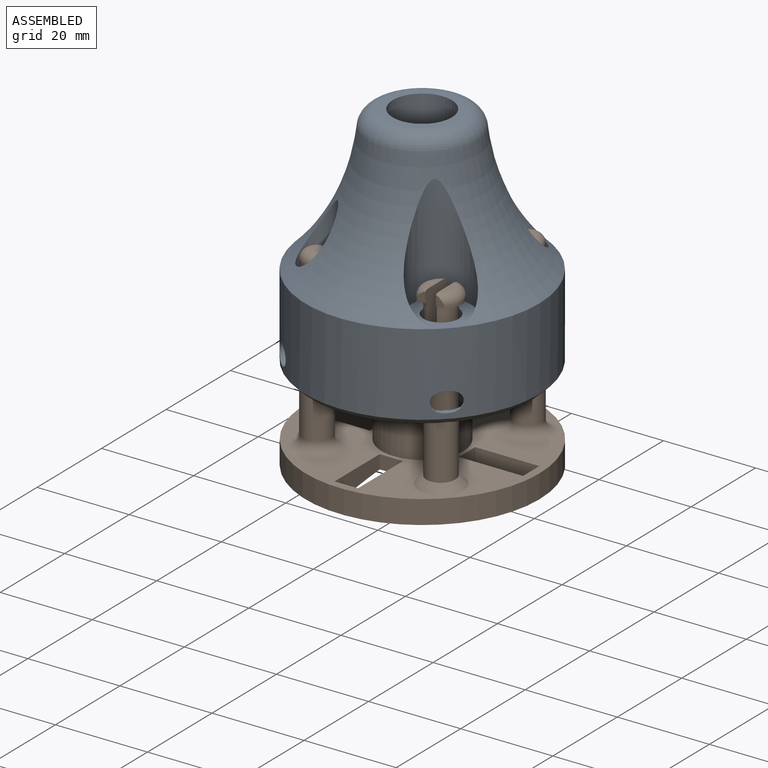
[diagram: assembled view]
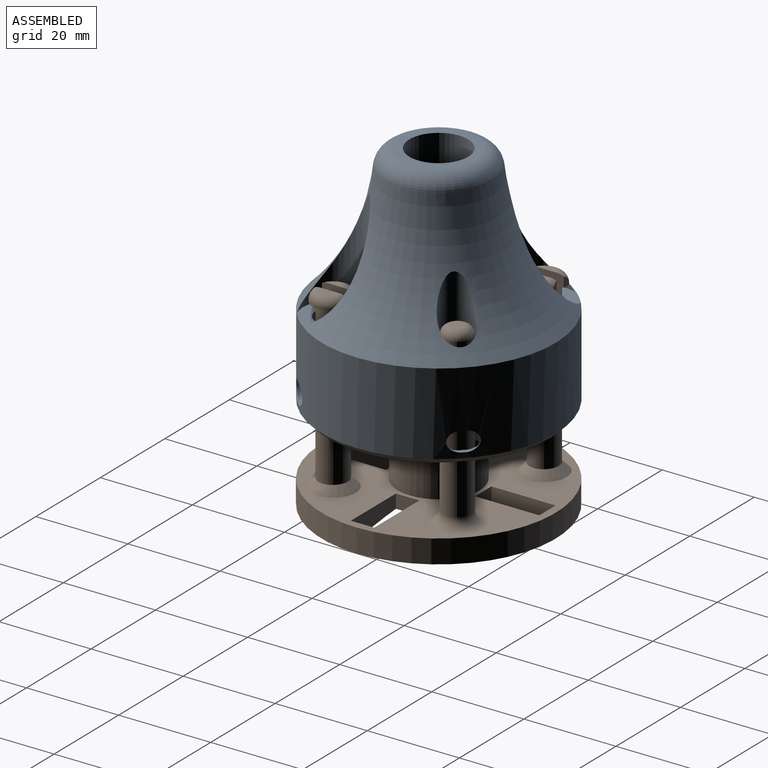
[diagram: assembled view, second angle]
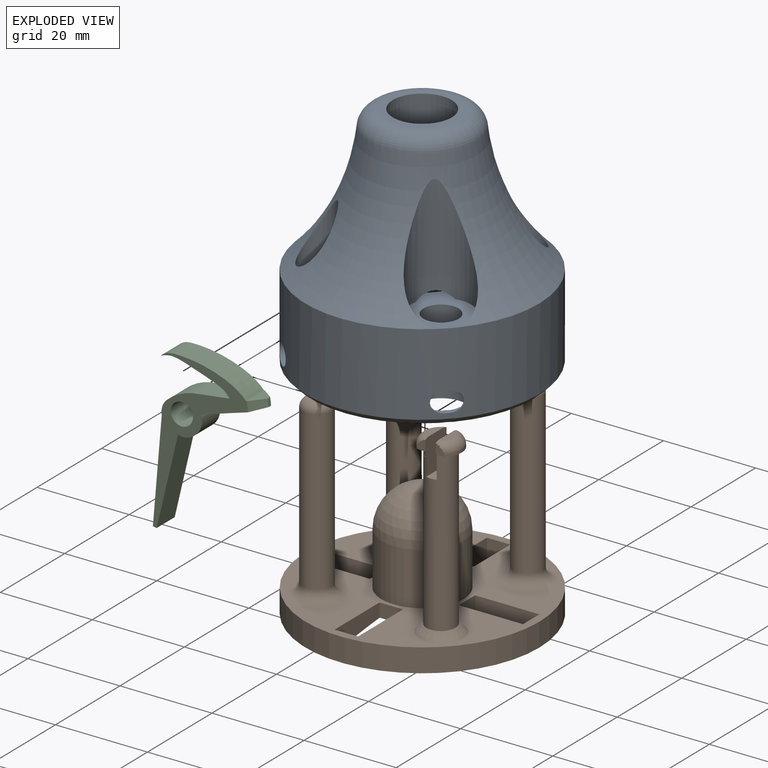
[diagram: exploded view]
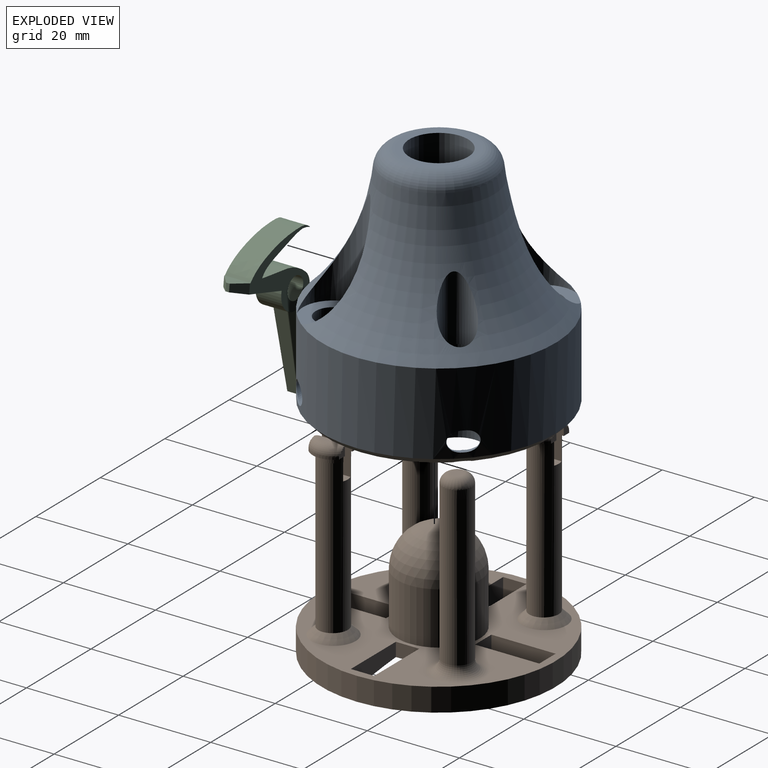
[diagram: exploded view, second angle]
ASSEMBLY  parts=3 mates=2
PART A: 90 faces, bbox 123.1x123.1x51.8 mm
  f0: cylinder r=2.16mm len=13.72mm, axis (0,-1,0), area 128.7mm2, adj f9,f51,f52,f53,f62,f63,f80,f86
  f1: cylinder r=2.16mm len=1.54mm, axis (0,-1,0), area 0.5mm2, adj f2,f26,f49
  f2: cylinder r=2.16mm len=13.72mm, axis (0,-1,0), area 115.4mm2, adj f1,f26,f48,f50,f84
  f3: revolved ~27.93x27.93mm, area 717.3mm2, adj f5,f6,f7,f8,f64,f65,f66,f67
  f4: torus R=56.88mm, axis (0,0,-1), area 2695.5mm2, adj f19,f73,f74,f75,f76,f77
  f5: plane 3.62x0.12mm, normal (0,0,1), area 0.3mm2, adj f3,f43
  f6: plane 33.68x16.9mm, normal (0,0,1), area 183mm2, adj f3,f18,f19,f22,f27,f32,f33,f35
  f7: plane 3.62x0.12mm, normal (0,0,1), area 0.3mm2, adj f3,f39
  f8: plane 33.68x16.82mm, normal (0,0,1), area 182.8mm2, adj f3,f16,f17,f19,f21,f28,f29,f31
  f9: cylinder r=3.81mm len=16mm, axis (0,0,1), area 338.6mm2, adj f0,f10,f51,f63,f68,f78
  f10: cylinder r=3.81mm len=0.16mm, axis (0,0,1), area 0mm2, adj f9,f51,f63
  f11: cylinder r=3.81mm len=16mm, axis (0,0,1), area 339.1mm2, adj f13,f55,f61,f69
  f12: cylinder r=2.16mm len=4.32mm, axis (0,-1,0), area 1.5mm2, adj f19,f57,f58
  f13: cylinder r=2.16mm len=14.61mm, axis (0,-1,0), area 140.9mm2, adj f11,f14,f32,f54,f55,f60,f61,f79
  f14: cylinder r=2.16mm len=1.14mm, axis (0,-1,0), area 0.3mm2, adj f13,f56,f60
  f15: cylinder r=2.16mm len=4.32mm, axis (0,-1,0), area 1.5mm2, adj f19,f51,f53
  f16: cylinder r=10.03mm len=19.05mm, axis (0,0,1), area 177.1mm2, adj f8,f20,f28,f40
  f17: cylinder r=10.03mm len=19.05mm, axis (0,0,1), area 177.1mm2, adj f8,f20,f29,f36
  f18: cylinder r=10.03mm len=19.05mm, axis (0,0,1), area 177.1mm2, adj f6,f20,f32,f41
  f19: cylinder r=25.4mm len=50.8mm, axis (0,0,-1), area 2750.6mm2, adj f4,f6,f8,f12,f15,f46,f47,f50
  f20: plane 48.26x48.26mm, normal (0,0,-1), area 841.1mm2, adj f16,f17,f18,f24,f26,f27,f28,f29
  f21: cylinder r=3.81mm len=7.62mm, axis (0,0,1), area 152mm2, adj f8,f25
  f22: cylinder r=3.81mm len=7.62mm, axis (0,0,1), area 152mm2, adj f6,f23
  f23: plane 10.41x10.41mm, normal (0,0,-1), area 39.6mm2, adj f22,f24
  f24: cylinder r=5.21mm len=12.7mm, axis (0,0,-1), area 335.9mm2, adj f20,f23,f44,f45,f58,f59,f81
  f25: plane 10.16x10.16mm, normal (0,0,-1), area 35.5mm2, adj f21,f26
  f26: cylinder r=5.08mm len=12.7mm, axis (0,0,-1), area 327.2mm2, adj f1,f2,f20,f25,f48,f49,f81
  f27: cylinder r=10.03mm len=19.05mm, axis (0,0,1), area 177.1mm2, adj f6,f20,f33,f37
  f28: plane 19.05x13.34mm, normal (0,-1,0), area 197.6mm2, adj f8,f16,f20,f30,f31,f83
  f29: plane 19.05x13.34mm, normal (0,1,0), area 199.3mm2, adj f8,f17,f20,f30,f31,f87
  f30: plane 6.35x5.08mm, normal (1,0,0), area 32.3mm2, adj f20,f28,f29,f31
  f31: cylinder r=17.15mm len=13.97mm, axis (0,-1,0), area 111.4mm2, adj f8,f28,f29,f30
  f32: plane 19.05x13.34mm, normal (0,-1,0), area 199.1mm2, adj f6,f13,f18,f20,f34,f35
  f33: plane 19.05x13.34mm, normal (0,1,0), area 199.1mm2, adj f6,f20,f27,f34,f35,f44
  f34: plane 6.35x5.08mm, normal (-1,0,0), area 32.3mm2, adj f20,f32,f33,f35
  f35: cylinder r=17.32mm len=13.97mm, axis (0,-1,0), area 111.3mm2, adj f6,f32,f33,f34
  f36: plane 19.05x13.34mm, normal (1,0,0), area 204.2mm2, adj f8,f17,f20,f38,f39,f51,f67
  f37: plane 19.05x13.34mm, normal (-1,0,0), area 204.2mm2, adj f6,f20,f27,f38,f39,f58,f64
  f38: plane 6.35x5.08mm, normal (0,1,0), area 32.3mm2, adj f20,f36,f37,f39
  f39: cylinder r=15.34mm len=13.97mm, axis (1,0,0), area 111.6mm2, adj f7,f36,f37,f38,f64,f67
  f40: plane 19.05x13.34mm, normal (1,0,0), area 204.2mm2, adj f8,f16,f20,f42,f43,f48,f66
  f41: plane 19.05x13.34mm, normal (-1,0,0), area 204.2mm2, adj f6,f18,f20,f42,f43,f55,f65
  f42: plane 6.35x5.08mm, normal (0,-1,0), area 32.3mm2, adj f20,f40,f41,f43
  f43: cylinder r=15.34mm len=13.97mm, axis (1,0,0), area 111.6mm2, adj f5,f40,f41,f42,f65,f66
  f44: cylinder r=2.16mm len=14.61mm, axis (0,-1,0), area 122.8mm2, adj f24,f33,f45,f57,f58
  f45: cylinder r=2.16mm len=1.37mm, axis (0,-1,0), area 0.4mm2, adj f24,f44,f59
  f46: cylinder r=2.16mm len=4.32mm, axis (0,-1,0), area 1.5mm2, adj f19,f54,f55
  f47: cylinder r=2.16mm len=4.32mm, axis (0,-1,0), area 1.5mm2, adj f19,f48,f50
  f48: cylinder r=2.16mm len=14.61mm, axis (1,0,0), area 125.5mm2, adj f2,f26,f40,f47,f49
  f49: cylinder r=2.16mm len=1.49mm, axis (1,0,0), area 0.5mm2, adj f1,f26,f48
  f50: cylinder r=2.16mm len=4.32mm, axis (1,0,0), area 1.5mm2, adj f2,f19,f47
  f51: cylinder r=2.16mm len=14.61mm, axis (1,0,0), area 140.1mm2, adj f0,f9,f10,f15,f36,f52,f62,f63
  f52: cylinder r=2.16mm len=1.19mm, axis (1,0,0), area 0.3mm2, adj f0,f51,f62
  f53: cylinder r=2.16mm len=4.32mm, axis (1,0,0), area 1.5mm2, adj f0,f15,f19
  f54: cylinder r=2.16mm len=4.32mm, axis (1,0,0), area 1.5mm2, adj f13,f19,f46
  f55: cylinder r=2.16mm len=14.61mm, axis (1,0,0), area 140.1mm2, adj f11,f13,f41,f46,f56,f60,f61,f79
  f56: cylinder r=2.16mm len=1.14mm, axis (1,0,0), area 0.3mm2, adj f14,f55,f60
  f57: cylinder r=2.16mm len=4.32mm, axis (1,0,0), area 1.5mm2, adj f12,f19,f44
  f58: cylinder r=2.16mm len=14.61mm, axis (1,0,0), area 125.5mm2, adj f12,f24,f37,f44,f59
  f59: cylinder r=2.16mm len=1.43mm, axis (1,0,0), area 0.5mm2, adj f24,f45,f58
  f60: cylinder r=5.32mm len=10.65mm, axis (0,0,-1), area 82.9mm2, adj f13,f14,f20,f55,f56,f79,f81
  f61: plane 7.58x7.58mm, normal (0,0,-1), area 12.8mm2, adj f11,f13,f55,f79
  f62: cylinder r=5.29mm len=10.59mm, axis (0,0,-1), area 83.1mm2, adj f0,f20,f51,f52,f80,f81
  f63: plane 7.55x7.55mm, normal (0,0,-1), area 12.4mm2, adj f0,f9,f10,f51,f80
  f64: plane 1.36x0.25mm, normal (0,0,-1), area 0.2mm2, adj f3,f37,f39
  f65: plane 1.36x0.25mm, normal (0,0,-1), area 0.2mm2, adj f3,f41,f43
  f66: plane 1.36x0.25mm, normal (0,0,-1), area 0.2mm2, adj f3,f40,f43
  f67: plane 1.36x0.25mm, normal (0,0,-1), area 0.2mm2, adj f3,f36,f39
  f68: plane 6.58x6.45mm, normal (0,0,-1), area 0.2mm2, adj f9,f77
  f69: plane 7.62x7.62mm, normal (0,0,-1), area 3mm2, adj f11,f76
  f70: plane 12.79x12.79mm, normal (0,0,1), area 128.6mm2, adj f71
  f71: cylinder r=6.4mm len=22.5mm, axis (0,0,-1), area 904.4mm2, adj f70,f72
  f72: plane 15.83x15.83mm, normal (0,0,1), area 68.2mm2, adj f71,f73
  f73: torus R=7.91mm, axis (0,0,1), area 359.7mm2, adj f4,f72
  f74: cylinder r=6.6mm len=23.15mm, axis (0,0,-1), area 437mm2, adj f3,f4,f8
  f75: cylinder r=6.6mm len=23.37mm, axis (0,0,-1), area 350.7mm2, adj f3,f4,f6
  f76: cylinder r=3.68mm len=14.31mm, axis (0,0,-1), area 180.3mm2, adj f4,f69
  f77: cylinder r=3.81mm len=14.61mm, axis (0,0,-1), area 191.1mm2, adj f4,f68,f78
  f78: plane 6.58x6.45mm, normal (0,0,1), area 0.2mm2, adj f9,f77
  f79: torus R=4.81mm, axis (0,0,-1), area 11.6mm2, adj f13,f55,f60,f61
  f80: torus R=4.79mm, axis (0,0,-1), area 11.5mm2, adj f0,f51,f62,f63
  f81: cone r=25.4mm half-angle=45deg, axis (0,0,1), area 279.5mm2, adj f19,f20,f24,f26,f60,f62
  f82: plane 3.05x3.05mm, normal (0,-1,0), area 7.3mm2, adj f85
  f83: cylinder r=2.29mm len=4.57mm, axis (0,1,0), area 1.8mm2, adj f28,f85
  f84: plane 4.32x4.32mm, normal (0,1,0), area 14.6mm2, adj f2
  f85: torus R=1.52mm, axis (0,-1,0), area 15.1mm2, adj f82,f83
  f86: plane 4.32x4.32mm, normal (0,-1,0), area 14.6mm2, adj f0
  f87: cylinder r=2.17mm len=4.34mm, axis (0,-1,0), area 1.7mm2, adj f29,f89
  f88: plane 2.82x2.82mm, normal (0,1,0), area 6.2mm2, adj f89
  f89: torus R=1.41mm, axis (0,1,0), area 14.2mm2, adj f87,f88
PART B: 74 faces, bbox 51.8x51.8x45 mm
  f0: plane 50.8x50.8mm, normal (0,0,1), area 1143.1mm2, adj f23,f24,f25,f26,f27,f28,f29,f30
  f1: plane 50.8x50.8mm, normal (0,0,-1), area 6.2mm2, adj f69,f70
  f2: cylinder r=4.45mm len=6.62mm, axis (0,0,-1), area 3.8mm2, adj f3,f12,f57,f58
  f3: plane 6.62x3.3mm, normal (0,0,-1), area 10.1mm2, adj f2,f17,f43,f57,f58
  f4: cylinder r=4.45mm len=6.61mm, axis (0,0,-1), area 3.8mm2, adj f5,f13,f61,f62
  f5: plane 6.61x3.31mm, normal (0,0,-1), area 10mm2, adj f4,f15,f20,f61,f62
  f6: torus R=2.41mm, axis (0,0,1), area 25.3mm2, adj f8,f16,f48,f59,f60
  f7: torus R=2.41mm, axis (0,0,1), area 25.3mm2, adj f10,f14,f49,f63,f64
  f8: cylinder r=4.45mm len=6.62mm, axis (0,0,-1), area 3.8mm2, adj f6,f9,f59,f60
  f9: plane 6.62x3.3mm, normal (0,0,-1), area 10.1mm2, adj f8,f16,f43,f59,f60
  f10: cylinder r=4.45mm len=6.61mm, axis (0,0,-1), area 3.8mm2, adj f7,f11,f63,f64
  f11: plane 6.61x3.3mm, normal (0,0,-1), area 10.2mm2, adj f10,f14,f47,f63,f64
  f12: torus R=2.41mm, axis (0,0,1), area 25.3mm2, adj f2,f17,f21,f57,f58
  f13: torus R=2.41mm, axis (0,0,1), area 25.3mm2, adj f4,f15,f22,f61,f62
  f14: plane 7.73x6.72mm, normal (1,0,0), area 46.6mm2, adj f7,f11,f44,f45,f46,f47,f49,f55
  f15: plane 7.73x6.72mm, normal (-1,0,0), area 46.7mm2, adj f5,f13,f18,f19,f20,f22,f45,f55
  f16: plane 7.76x6.76mm, normal (1,0,0), area 46.7mm2, adj f6,f9,f43,f48,f56,f59,f60
  f17: plane 7.76x6.76mm, normal (-1,0,0), area 46.7mm2, adj f3,f12,f21,f43,f56,f57,f58
  f18: plane 1.73x1.59mm, normal (0,0,1), area 0mm2, adj f15,f20,f45
  f19: plane 4.37x2.05mm, normal (0,0,-1), area 0.1mm2, adj f15,f20,f45
  f20: cylinder r=3.17mm len=5.94mm, axis (0,0,-1), area 9.7mm2, adj f5,f15,f18,f19
  f21: plane 4.25x1.27mm, normal (0,0,1), area 3.8mm2, adj f12,f17
  f22: plane 4.26x1.28mm, normal (0,0,1), area 3.9mm2, adj f13,f15
  f23: plane 15.02x5.83mm, normal (1,0,0), area 52.7mm2, adj f0,f24,f38,f69
  f24: plane 5.36x5.06mm, normal (0,-1,0), area 24.2mm2, adj f0,f23,f25,f69
  f25: plane 15.02x5.83mm, normal (-1,0,0), area 52.7mm2, adj f0,f24,f38,f69
  f26: plane 15.02x5.83mm, normal (0,-1,0), area 52.7mm2, adj f0,f27,f35,f69
  f27: plane 5.15x4.85mm, normal (-1,0,0), area 24.2mm2, adj f0,f26,f28,f69
  f28: plane 15.02x5.83mm, normal (0,1,0), area 52.7mm2, adj f0,f27,f35,f69
  f29: plane 5.36x5.06mm, normal (0,1,0), area 24.2mm2, adj f0,f30,f36,f69
  f30: plane 15.02x5.83mm, normal (1,0,0), area 52.7mm2, adj f0,f29,f31,f69
  f31: plane 5.74x3.66mm, normal (0,-1,0), area 15.1mm2, adj f0,f30,f36,f69
  f32: plane 5.36x5.06mm, normal (1,0,0), area 24.2mm2, adj f0,f33,f37,f69
  f33: plane 15.02x5.83mm, normal (0,-1,0), area 52.7mm2, adj f0,f32,f34,f69
  f34: plane 5.74x3.66mm, normal (-1,0,0), area 15.1mm2, adj f0,f33,f37,f69
  f35: plane 5.25x3.17mm, normal (1,0,0), area 15.1mm2, adj f0,f26,f28,f69
  f36: plane 15.02x5.83mm, normal (-1,0,0), area 52.7mm2, adj f0,f29,f31,f69
  f37: plane 15.02x5.83mm, normal (0,1,0), area 52.7mm2, adj f0,f32,f34,f69
  f38: plane 5.74x3.66mm, normal (0,1,0), area 15.1mm2, adj f0,f23,f25,f69
  f39: cylinder r=8.89mm len=17.78mm, axis (0,0,-1), area 638.5mm2, adj f0,f40
  f40: sphere r=8.89mm, area 496.6mm2, adj f39
  f41: cylinder r=3.17mm len=34.42mm, axis (0,0,-1), area 686.6mm2, adj f54,f66
  f42: cylinder r=3.17mm len=32.51mm, axis (0,0,-1), area 648.6mm2, adj f51,f65
  f43: cylinder r=3.17mm len=34.68mm, axis (0,0,-1), area 668mm2, adj f3,f9,f16,f17,f56,f68
  f44: plane 4.37x2.03mm, normal (0,0,1), area 0.1mm2, adj f14,f45,f47
  f45: cylinder r=3.17mm len=33.41mm, axis (0,0,-1), area 648.7mm2, adj f14,f15,f18,f19,f44,f46,f55,f67
  f46: plane 1.71x1.58mm, normal (0,0,-1), area 0mm2, adj f14,f45,f47
  f47: cylinder r=3.17mm len=5.91mm, axis (0,0,-1), area 9.7mm2, adj f11,f14,f44,f46
  f48: plane 4.25x1.27mm, normal (0,0,1), area 3.8mm2, adj f6,f16
  f49: plane 4.25x1.27mm, normal (0,0,1), area 3.8mm2, adj f7,f14
  f50: plane 2.54x2.54mm, normal (0,0,1), area 5.1mm2, adj f54
  f51: cylinder r=3.17mm len=6.35mm, axis (0,0,-1), area 38mm2, adj f42,f53
  f52: plane 2.54x2.54mm, normal (0,0,1), area 5.1mm2, adj f53
  f53: torus R=1.27mm, axis (0,0,1), area 46.7mm2, adj f51,f52
  f54: torus R=1.27mm, axis (0,0,1), area 46.7mm2, adj f41,f50
  f55: plane 6.35x2.28mm, normal (0,0,1), area 14.2mm2, adj f14,f15,f45
  f56: plane 6.35x2.29mm, normal (0,0,1), area 14.2mm2, adj f16,f17,f43
  f57: plane 3.26x2.93mm, normal (0,-1,0), area 3.7mm2, adj f2,f3,f12,f17
  f58: plane 2.92x2.45mm, normal (0,1,0), area 2.8mm2, adj f2,f3,f12,f17
  f59: plane 3.26x2.93mm, normal (0,-1,0), area 3.7mm2, adj f6,f8,f9,f16
  f60: plane 2.92x2.45mm, normal (0,1,0), area 2.8mm2, adj f6,f8,f9,f16
  f61: plane 3.1x2.7mm, normal (0,1,0), area 3.2mm2, adj f4,f5,f13,f15
  f62: plane 3.13x2.74mm, normal (0,-1,0), area 3.3mm2, adj f4,f5,f13,f15
  f63: plane 3.09x2.69mm, normal (0,1,0), area 3.2mm2, adj f7,f10,f11,f14
  f64: plane 3.12x2.72mm, normal (0,-1,0), area 3.3mm2, adj f7,f10,f11,f14
  f65: torus R=5.71mm, axis (0,0,1), area 102.7mm2, adj f0,f42
  f66: torus R=5.71mm, axis (0,0,1), area 102.7mm2, adj f0,f41
  f67: cone r=2.29mm half-angle=45deg, axis (0,0,-1), area 58.4mm2, adj f0,f45
  f68: cone r=2.29mm half-angle=45deg, axis (0,0,-1), area 58.5mm2, adj f0,f43
  f69: revolved ~50.72x50.72mm, area 1755.9mm2, adj f1,f23,f24,f25,f26,f27,f28,f29
  f70: cylinder r=25.4mm len=50.8mm, axis (0,0,1), area 810.7mm2, adj f0,f1
  f71: cylinder r=6.35mm len=14.94mm, axis (0,0,-1), area 596.2mm2, adj f69,f73
  f72: plane 2.54x2.54mm, normal (0,0,-1), area 5.1mm2, adj f73
  f73: torus R=1.27mm, axis (0,0,-1), area 225.8mm2, adj f71,f72
PART C: 24 faces, bbox 22.2x5.6x35.7 mm
  f0: plane 7.76x5.59mm, normal (-0.27,0,0.96), area 45mm2, adj f3,f4,f13,f17
  f1: plane 5.59x2.98mm, normal (-0.27,0,0.96), area 10.3mm2, adj f3,f13,f14,f15,f16,f18
  f2: plane 12.22x5.72mm, normal (0.42,0,-0.91), area 68.3mm2, adj f3,f11,f13,f14,f15,f16
  f3: plane 35.73x19.59mm, normal (0,1,0), area 150.4mm2, adj f0,f1,f2,f4,f5,f6,f7,f8
  f4: cylinder r=11.55mm len=5.59mm, axis (0,1,0), area 35.6mm2, adj f0,f3,f5,f13
  f5: cylinder r=3.61mm len=5.59mm, axis (0,1,0), area 20.1mm2, adj f3,f4,f6,f13
  f6: plane 22.38x5.59mm, normal (-1,0,-0.05), area 125.2mm2, adj f3,f5,f7,f13
  f7: plane 5.59x0.84mm, normal (0,0,-1), area 4.7mm2, adj f3,f6,f8,f13
  f8: plane 19.99x5.59mm, normal (1,0,-0.09), area 112.2mm2, adj f3,f7,f9,f13
  f9: plane 5.59x0.9mm, normal (-0.06,0,-1), area 5.1mm2, adj f3,f8,f10,f13
  f10: cylinder r=4.2mm len=5.59mm, axis (0,1,0), area 15.4mm2, adj f3,f9,f11,f13
  f11: cylinder r=4.43mm len=5.59mm, axis (0,1,0), area 29.5mm2, adj f2,f3,f10,f13
  f12: cylinder r=2.41mm len=5.59mm, axis (0,1,0), area 84.7mm2, adj f3,f13
  f13: plane 35.73x19.6mm, normal (0,-1,0), area 150.4mm2, adj f0,f1,f2,f4,f5,f6,f7,f8
  f14: plane 1.58x0.76mm, normal (0.96,0.02,0.27), area 1.2mm2, adj f1,f2,f15,f16
  f15: plane 3.21x2.81mm, normal (0.62,-0.77,0.17), area 7.1mm2, adj f1,f2,f13,f14
  f16: plane 3.21x2.82mm, normal (0.62,0.77,0.17), area 7.1mm2, adj f1,f2,f3,f14
  f17: extruded ~12.9x5.59mm, area 75.8mm2, adj f0,f3,f13,f23
  f18: extruded ~5.59x4.99mm, area 31.2mm2, adj f1,f3,f13,f19
  f19: cylinder r=27.66mm len=9.66mm, axis (0,1,0), area 54.4mm2, adj f3,f13,f18,f20
  f20: extruded ~5.59x1.78mm, area 10.1mm2, adj f3,f13,f19,f21
  f21: plane 5.59x0.94mm, normal (-0.28,0,0.96), area 5.5mm2, adj f3,f13,f20,f22
  f22: extruded ~5.59x2.28mm, area 23.8mm2, adj f3,f13,f21,f23
  f23: plane 5.59x0.12mm, normal (0,0,-1), area 0.7mm2, adj f3,f13,f17,f22
PLACE A rot(axis=(0.24,0.97,-0.05),0deg) t=(-31.69,-26.66,-12.44)mm
PLACE B rot(axis=(0.24,0.97,-0.05),0deg) t=(-31.65,-26.65,-6.41)mm
PLACE C rot(axis=(0,1,0),8deg) t=(-35.41,-27.93,-15.13)mm
MATE slider A.f22 <-> B.f45  axis (0,0,1) through (-18.18,-40.12,29.47)mm
MATE revolute C.f11 <-> A.f0  axis (0,1,0) through (-49.47,-30.72,14.99)mm
